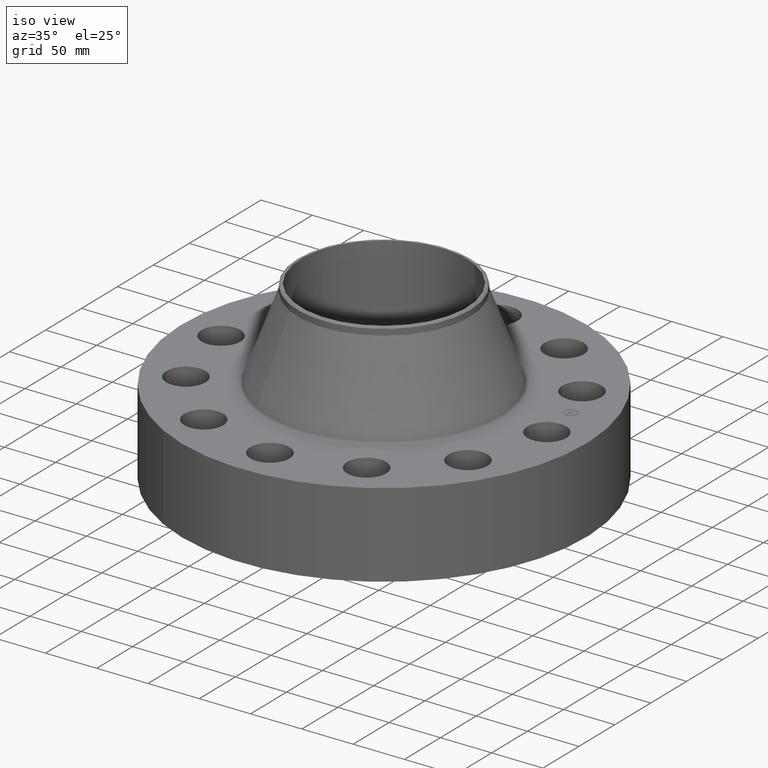
[diagram: clean part render]
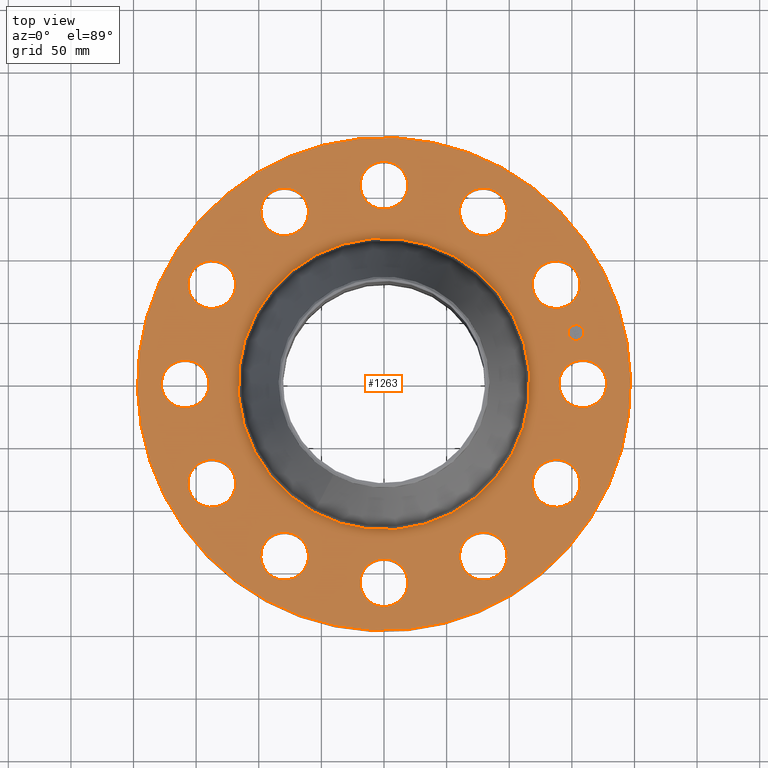
[diagram: tour spotlight — one face highlighted and labeled with its STEP entity id]
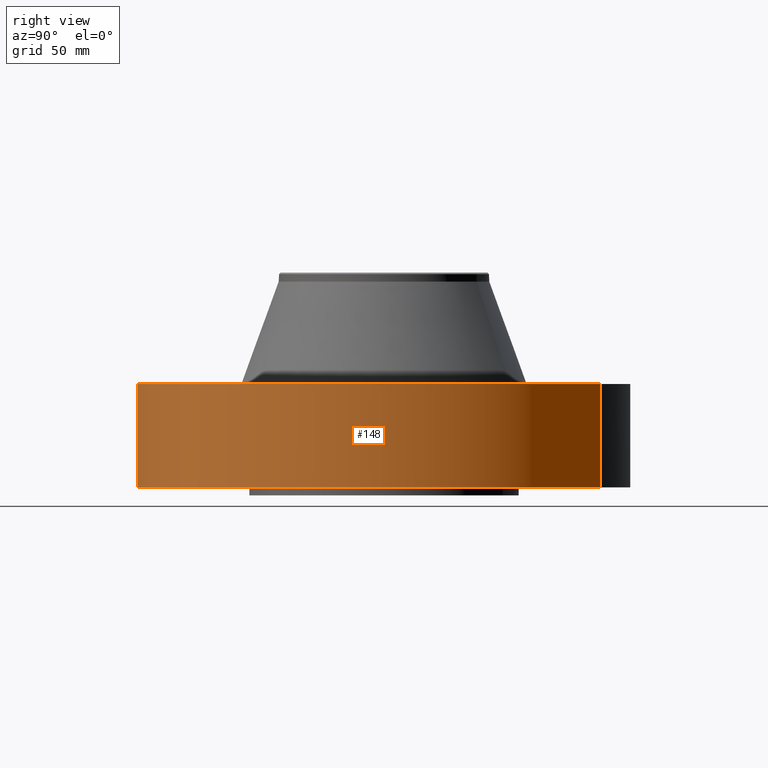
[diagram: tour spotlight — one face highlighted and labeled with its STEP entity id]
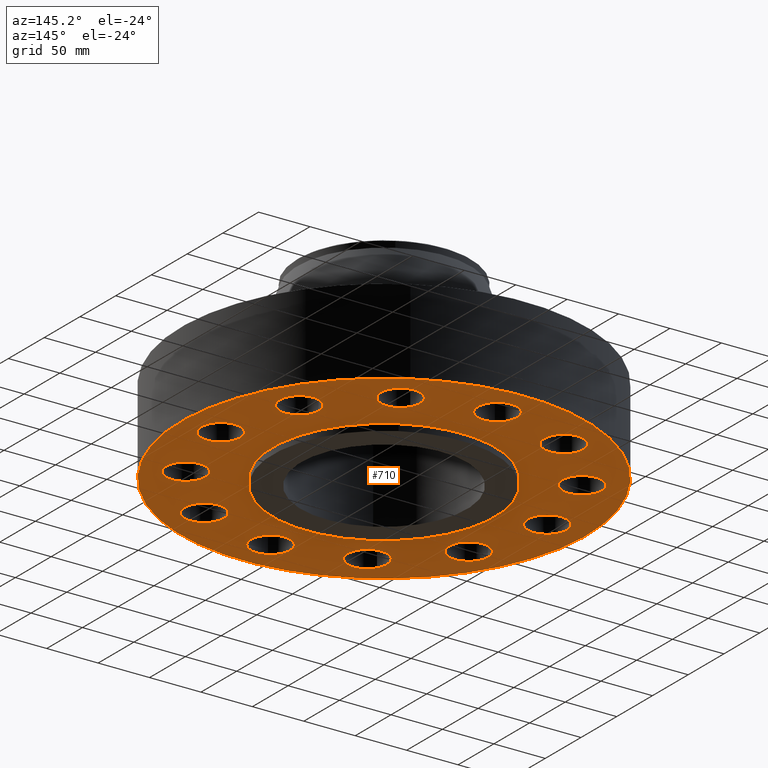
[diagram: tour spotlight — one face highlighted and labeled with its STEP entity id]
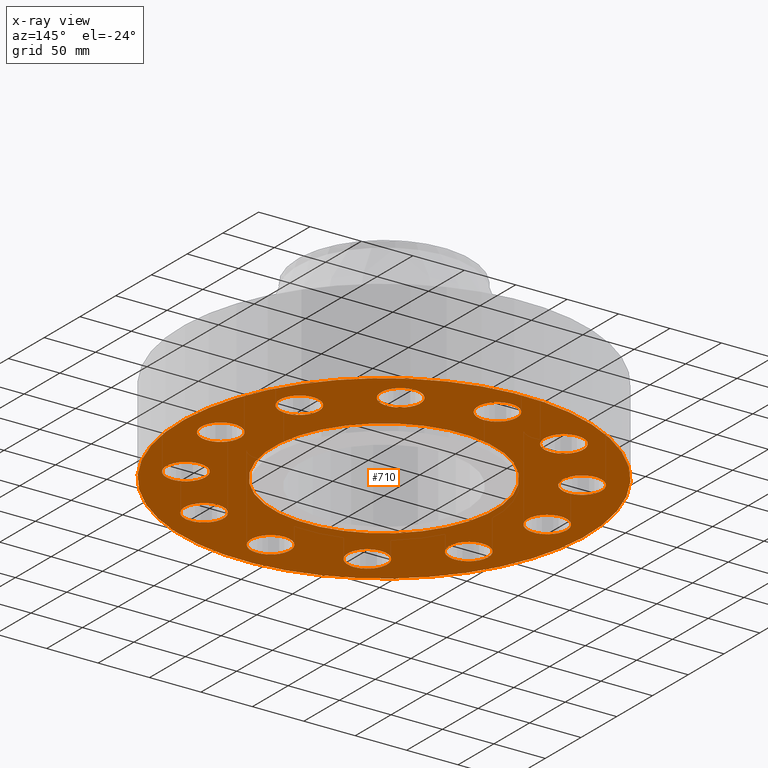
[diagram: x-ray of the same camera — body ghosted, this tour face saturated]
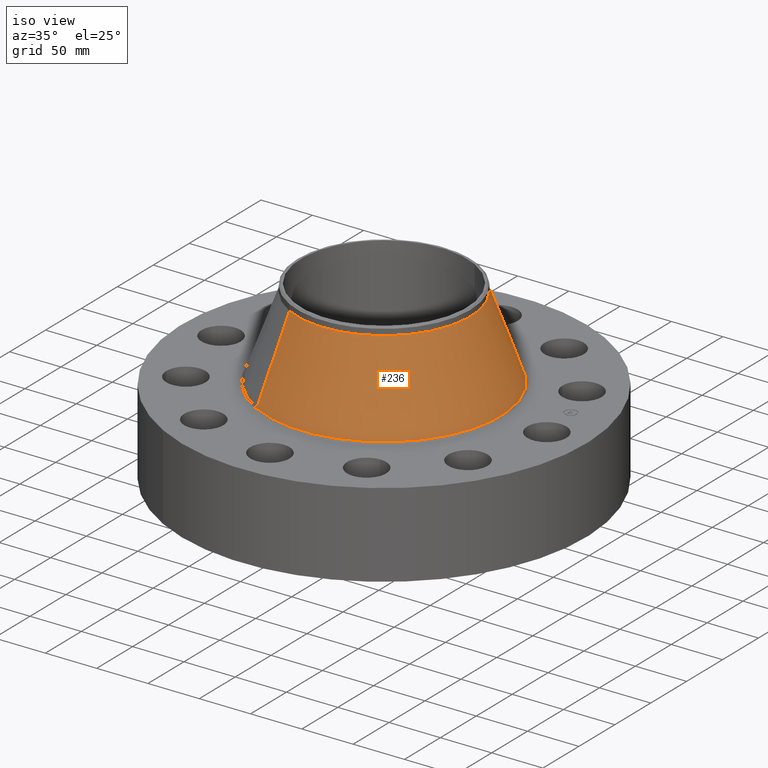
[diagram: tour spotlight — one face highlighted and labeled with its STEP entity id]
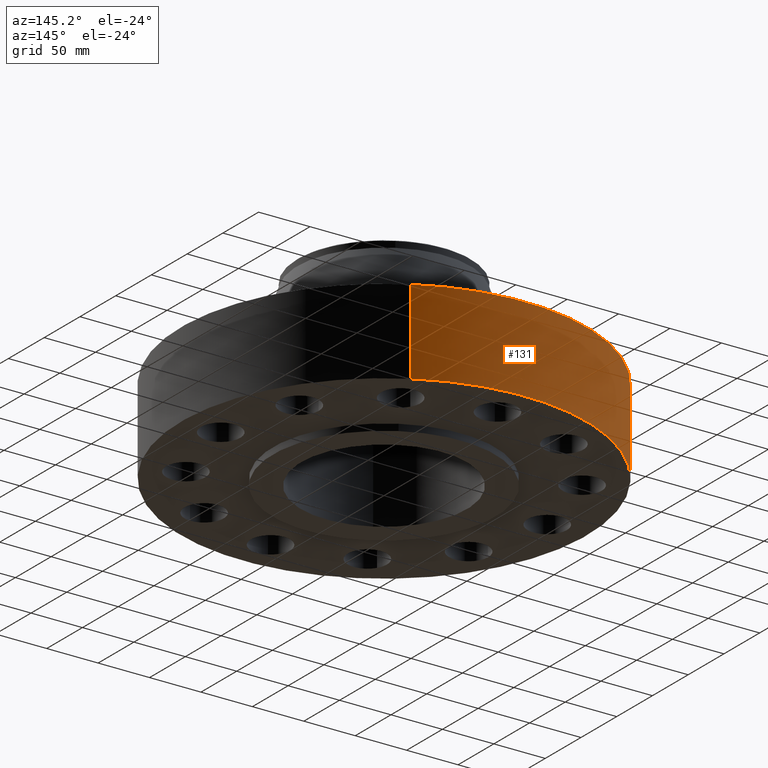
[diagram: tour spotlight — one face highlighted and labeled with its STEP entity id]
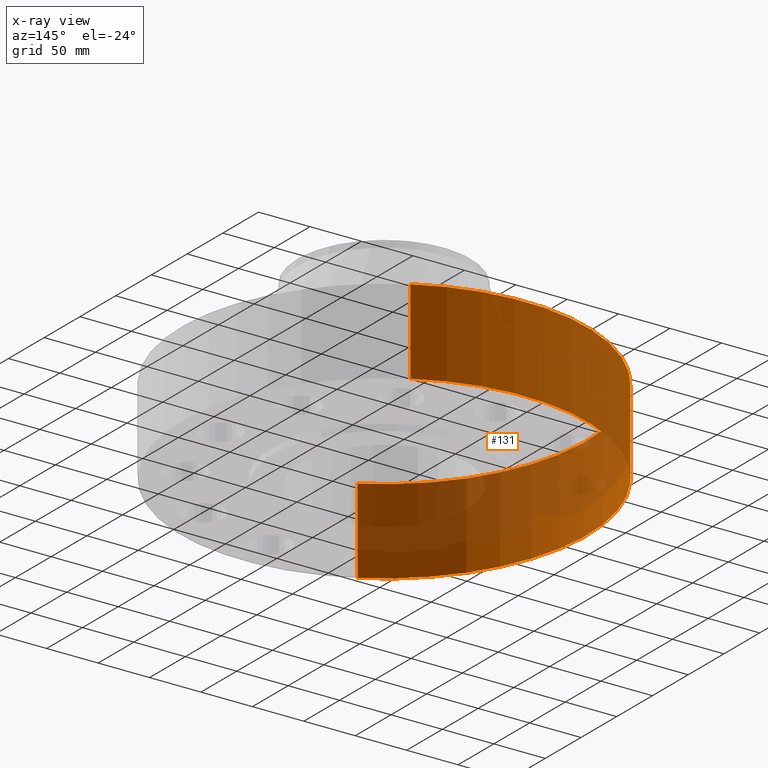
[diagram: x-ray of the same camera — body ghosted, this tour face saturated]
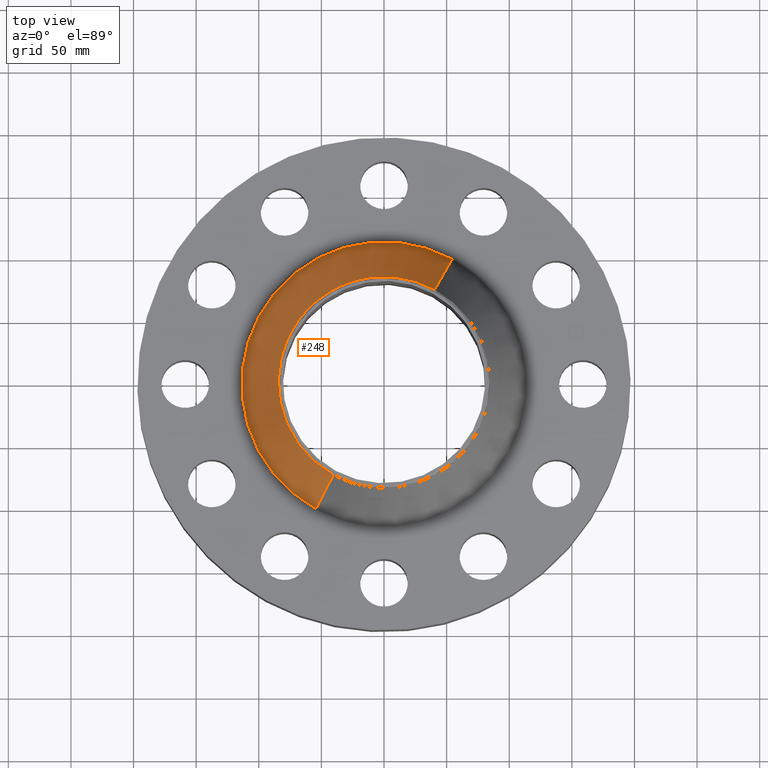
[diagram: tour spotlight — one face highlighted and labeled with its STEP entity id]
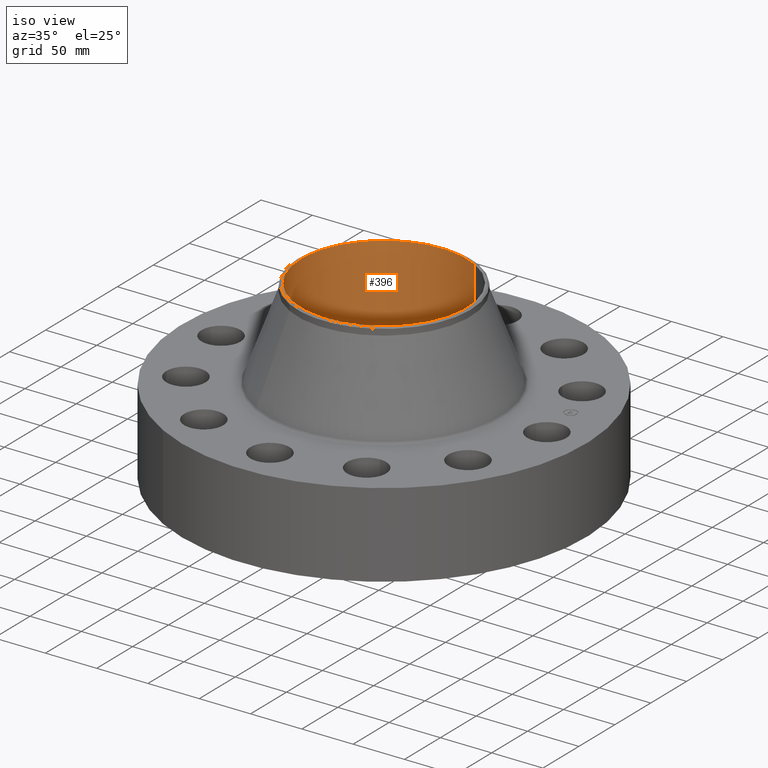
[diagram: tour spotlight — one face highlighted and labeled with its STEP entity id]
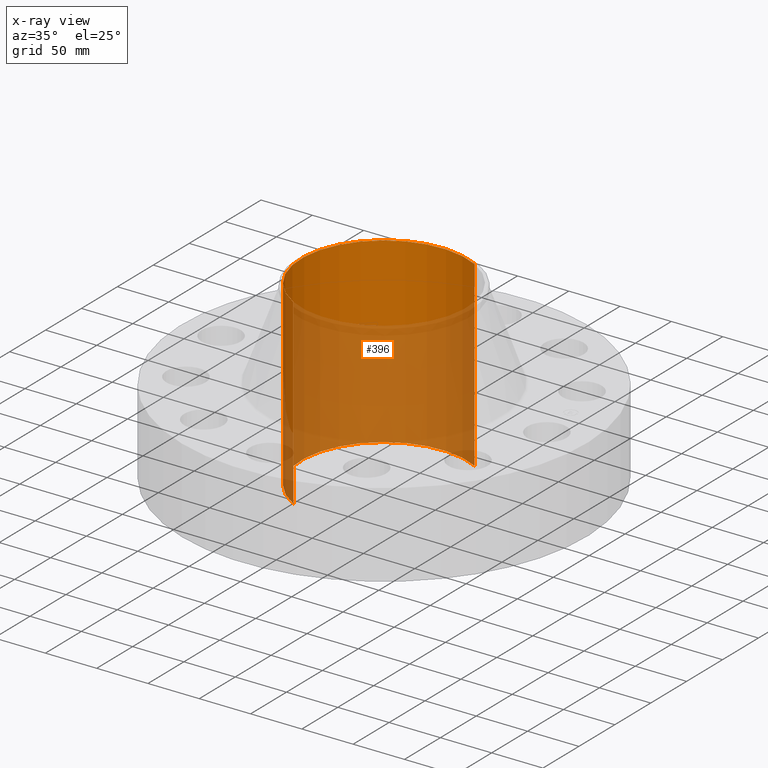
[diagram: x-ray of the same camera — body ghosted, this tour face saturated]
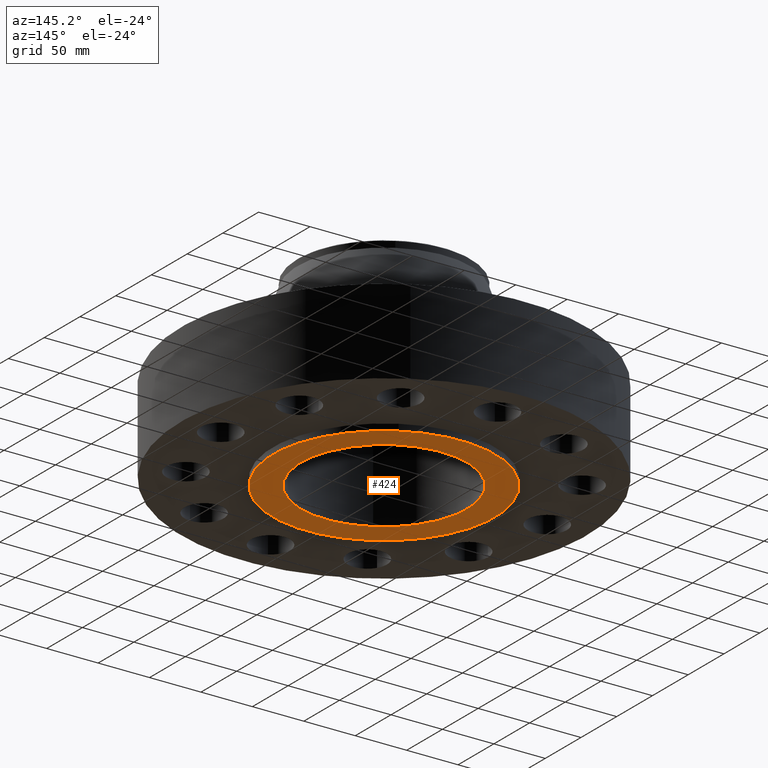
[diagram: tour spotlight — one face highlighted and labeled with its STEP entity id]
A machine part: a face-by-face anatomy tour. The part has 427 B-rep faces; the first image is the clean iso view, then the 8 largest visible faces are spotlighted one at a time (largest first), each with its STEP entity span.

Face 1 — top view, entity #1263. In plain terms, the highlighted planar face has unit normal (0, 0, -1).
Definition (entity closure, byte-faithful):
#65=AXIS2_PLACEMENT_3D('Circle Axis2P3D',#63,#64,$) ;
#82=AXIS2_PLACEMENT_3D('Circle Axis2P3D',#80,#81,$) ;
#115=AXIS2_PLACEMENT_3D('Circle Axis2P3D',#113,#114,$) ;
#139=AXIS2_PLACEMENT_3D('Circle Axis2P3D',#137,#138,$) ;
#156=AXIS2_PLACEMENT_3D('Circle Axis2P3D',#154,#155,$) ;
#191=AXIS2_PLACEMENT_3D('Circle Axis2P3D',#189,#190,$) ;
#732=AXIS2_PLACEMENT_3D('Circle Axis2P3D',#730,#731,$) ;
#744=AXIS2_PLACEMENT_3D('Circle Axis2P3D',#742,#743,$) ;
#775=AXIS2_PLACEMENT_3D('Circle Axis2P3D',#773,#774,$) ;
#787=AXIS2_PLACEMENT_3D('Circle Axis2P3D',#785,#786,$) ;
#818=AXIS2_PLACEMENT_3D('Circle Axis2P3D',#816,#817,$) ;
#830=AXIS2_PLACEMENT_3D('Circle Axis2P3D',#828,#829,$) ;
#861=AXIS2_PLACEMENT_3D('Circle Axis2P3D',#859,#860,$) ;
#873=AXIS2_PLACEMENT_3D('Circle Axis2P3D',#871,#872,$) ;
#904=AXIS2_PLACEMENT_3D('Circle Axis2P3D',#902,#903,$) ;
#916=AXIS2_PLACEMENT_3D('Circle Axis2P3D',#914,#915,$) ;
#947=AXIS2_PLACEMENT_3D('Circle Axis2P3D',#945,#946,$) ;
#959=AXIS2_PLACEMENT_3D('Circle Axis2P3D',#957,#958,$) ;
#990=AXIS2_PLACEMENT_3D('Circle Axis2P3D',#988,#989,$) ;
#1002=AXIS2_PLACEMENT_3D('Circle Axis2P3D',#1000,#1001,$) ;
#1033=AXIS2_PLACEMENT_3D('Circle Axis2P3D',#1031,#1032,$) ;
#1045=AXIS2_PLACEMENT_3D('Circle Axis2P3D',#1043,#1044,$) ;
#1076=AXIS2_PLACEMENT_3D('Circle Axis2P3D',#1074,#1075,$) ;
#1088=AXIS2_PLACEMENT_3D('Circle Axis2P3D',#1086,#1087,$) ;
#1119=AXIS2_PLACEMENT_3D('Circle Axis2P3D',#1117,#1118,$) ;
#1131=AXIS2_PLACEMENT_3D('Circle Axis2P3D',#1129,#1130,$) ;
#1162=AXIS2_PLACEMENT_3D('Circle Axis2P3D',#1160,#1161,$) ;
#1174=AXIS2_PLACEMENT_3D('Circle Axis2P3D',#1172,#1173,$) ;
#1187=AXIS2_PLACEMENT_3D('Plane Axis2P3D',#1184,#1185,#1186) ;
#1247=AXIS2_PLACEMENT_3D('Circle Axis2P3D',#1245,#1246,$) ;
#1256=AXIS2_PLACEMENT_3D('Circle Axis2P3D',#1254,#1255,$) ;
#46=CARTESIAN_POINT('Vertex',(5.5918130786,0.359569153955,3.25000000001)) ;
#60=CARTESIAN_POINT('Vertex',(6.90818692145,-0.359569153955,3.25000000001)) ;
#63=CARTESIAN_POINT('Axis2P3D Location',(6.25000000003,0.,3.25000000001)) ;
#80=CARTESIAN_POINT('Axis2P3D Location',(6.25000000003,0.,3.25000000001)) ;
#110=CARTESIAN_POINT('Vertex',(-3.7155479242,-6.80126485468,3.25000000001)) ;
#113=CARTESIAN_POINT('Axis2P3D Location',(0.,0.,3.25000000001)) ;
#117=CARTESIAN_POINT('Vertex',(3.7155479242,6.80126485468,3.25000000001)) ;
#137=CARTESIAN_POINT('Axis2P3D Location',(0.,0.,3.25000000001)) ;
#154=CARTESIAN_POINT('Axis2P3D Location',(0.,0.,3.25000000001)) ;
#158=CARTESIAN_POINT('Vertex',(2.1975436546,4.02257667767,3.25000000001)) ;
#160=CARTESIAN_POINT('Vertex',(-2.1975436546,-4.02257667767,3.25000000001)) ;
#189=CARTESIAN_POINT('Axis2P3D Location',(0.,0.,3.25000000001)) ;
#720=CARTESIAN_POINT('Vertex',(-5.02243675626,2.48451051756,3.25000000001)) ;
#727=CARTESIAN_POINT('Vertex',(-5.80288079109,3.76548948246,3.25000000001)) ;
#730=CARTESIAN_POINT('Axis2P3D Location',(-5.41265877367,3.12500000001,3.25000000001)) ;
#742=CARTESIAN_POINT('Axis2P3D Location',(-5.41265877367,3.12500000001,3.25000000001)) ;
#763=CARTESIAN_POINT('Vertex',(3.10730256104,-4.66286760231,3.25000000001)) ;
#770=CARTESIAN_POINT('Vertex',(3.14269743898,-6.16244994504,3.25000000001)) ;
#773=CARTESIAN_POINT('Axis2P3D Location',(3.12500000001,-5.41265877367,3.25000000001)) ;
#785=CARTESIAN_POINT('Axis2P3D Location',(3.12500000001,-5.41265877367,3.25000000001)) ;
#806=CARTESIAN_POINT('Vertex',(-3.10730256104,4.66286760231,3.25000000001)) ;
#813=CARTESIAN_POINT('Vertex',(-3.14269743898,6.16244994504,3.25000000001)) ;
#816=CARTESIAN_POINT('Axis2P3D Location',(-3.12500000001,5.41265877367,3.25000000001)) ;
#828=CARTESIAN_POINT('Axis2P3D Location',(-3.12500000001,5.41265877367,3.25000000001)) ;
#849=CARTESIAN_POINT('Vertex',(0.359569153955,-5.5918130786,3.25000000001)) ;
#856=CARTESIAN_POINT('Vertex',(-0.359569153955,-6.90818692145,3.25000000001)) ;
#859=CARTESIAN_POINT('Axis2P3D Location',(-7.3626281347E-016,-6.25000000003,3.25000000001)) ;
#871=CARTESIAN_POINT('Axis2P3D Location',(-7.3626281347E-016,-6.25000000003,3.25000000001)) ;
#892=CARTESIAN_POINT('Vertex',(-0.359569153955,5.5918130786,3.25000000001)) ;
#899=CARTESIAN_POINT('Vertex',(0.359569153955,6.90818692145,3.25000000001)) ;
#902=CARTESIAN_POINT('Axis2P3D Location',(-1.14810637421E-015,6.25000000003,3.25000000001)) ;
#914=CARTESIAN_POINT('Axis2P3D Location',(-1.14810637421E-015,6.25000000003,3.25000000001)) ;
#935=CARTESIAN_POINT('Vertex',(-2.48451051756,-5.02243675626,3.25000000001)) ;
#942=CARTESIAN_POINT('Vertex',(-3.76548948246,-5.80288079109,3.25000000001)) ;
#945=CARTESIAN_POINT('Axis2P3D Location',(-3.12500000001,-5.41265877367,3.25000000001)) ;
#957=CARTESIAN_POINT('Axis2P3D Location',(-3.12500000001,-5.41265877367,3.25000000001)) ;
#978=CARTESIAN_POINT('Vertex',(2.48451051756,5.02243675626,3.25000000001)) ;
#985=CARTESIAN_POINT('Vertex',(3.76548948246,5.80288079109,3.25000000001)) ;
#988=CARTESIAN_POINT('Axis2P3D Location',(3.12500000001,5.41265877367,3.25000000001)) ;
#1000=CARTESIAN_POINT('Axis2P3D Location',(3.12500000001,5.41265877367,3.25000000001)) ;
#1021=CARTESIAN_POINT('Vertex',(-4.66286760231,-3.10730256104,3.25000000001)) ;
#1028=CARTESIAN_POINT('Vertex',(-6.16244994504,-3.14269743898,3.25000000001)) ;
#1031=CARTESIAN_POINT('Axis2P3D Location',(-5.41265877367,-3.12500000001,3.25000000001)) ;
#1043=CARTESIAN_POINT('Axis2P3D Location',(-5.41265877367,-3.12500000001,3.25000000001)) ;
#1064=CARTESIAN_POINT('Vertex',(4.66286760231,3.10730256104,3.25000000001)) ;
#1071=CARTESIAN_POINT('Vertex',(6.16244994504,3.14269743898,3.25000000001)) ;
#1074=CARTESIAN_POINT('Axis2P3D Location',(5.41265877367,3.12500000001,3.25000000001)) ;
#1086=CARTESIAN_POINT('Axis2P3D Location',(5.41265877367,3.12500000001,3.25000000001)) ;
#1107=CARTESIAN_POINT('Vertex',(-5.5918130786,-0.359569153955,3.25000000001)) ;
#1114=CARTESIAN_POINT('Vertex',(-6.90818692145,0.359569153955,3.25000000001)) ;
#1117=CARTESIAN_POINT('Axis2P3D Location',(-6.25000000003,-7.6540424947E-016,3.25000000001)) ;
#1129=CARTESIAN_POINT('Axis2P3D Location',(-6.25000000003,-7.6540424947E-016,3.25000000001)) ;
#1150=CARTESIAN_POINT('Vertex',(5.02243675626,-2.48451051756,3.25000000001)) ;
#1157=CARTESIAN_POINT('Vertex',(5.80288079109,-3.76548948246,3.25000000001)) ;
#1160=CARTESIAN_POINT('Axis2P3D Location',(5.41265877367,-3.12500000001,3.25000000001)) ;
#1172=CARTESIAN_POINT('Axis2P3D Location',(5.41265877367,-3.12500000001,3.25000000001)) ;
#1184=CARTESIAN_POINT('Axis2P3D Location',(0.,7.75000000003,3.25000000001)) ;
#1245=CARTESIAN_POINT('Axis2P3D Location',(6.03703641433,1.6176190319,3.25000000001)) ;
#1249=CARTESIAN_POINT('Vertex',(5.97297870067,1.8566856739,3.25000000001)) ;
#1251=CARTESIAN_POINT('Vertex',(6.10109412799,1.37855238989,3.25000000001)) ;
#1254=CARTESIAN_POINT('Axis2P3D Location',(6.03703641433,1.6176190319,3.25000000001)) ;
#64=DIRECTION('Axis2P3D Direction',(0.,-0.,-0.0393700787402)) ;
#81=DIRECTION('Axis2P3D Direction',(0.,-0.,-0.0393700787402)) ;
#114=DIRECTION('Axis2P3D Direction',(0.,0.,-0.0393700787402)) ;
#138=DIRECTION('Axis2P3D Direction',(0.,0.,-0.0393700787402)) ;
#155=DIRECTION('Axis2P3D Direction',(0.,0.,-0.0393700787402)) ;
#190=DIRECTION('Axis2P3D Direction',(0.,0.,-0.0393700787402)) ;
#731=DIRECTION('Axis2P3D Direction',(0.,0.,-0.0393700787402)) ;
#743=DIRECTION('Axis2P3D Direction',(0.,0.,-0.0393700787402)) ;
#774=DIRECTION('Axis2P3D Direction',(0.,-0.,-0.0393700787402)) ;
#786=DIRECTION('Axis2P3D Direction',(0.,-0.,-0.0393700787402)) ;
#817=DIRECTION('Axis2P3D Direction',(0.,0.,-0.0393700787402)) ;
#829=DIRECTION('Axis2P3D Direction',(0.,0.,-0.0393700787402)) ;
#860=DIRECTION('Axis2P3D Direction',(0.,-0.,-0.0393700787402)) ;
#872=DIRECTION('Axis2P3D Direction',(0.,-0.,-0.0393700787402)) ;
#903=DIRECTION('Axis2P3D Direction',(0.,0.,-0.0393700787402)) ;
#915=DIRECTION('Axis2P3D Direction',(0.,0.,-0.0393700787402)) ;
#946=DIRECTION('Axis2P3D Direction',(-0.,0.,-0.0393700787402)) ;
#958=DIRECTION('Axis2P3D Direction',(-0.,0.,-0.0393700787402)) ;
#989=DIRECTION('Axis2P3D Direction',(0.,0.,-0.0393700787402)) ;
#1001=DIRECTION('Axis2P3D Direction',(0.,0.,-0.0393700787402)) ;
#1032=DIRECTION('Axis2P3D Direction',(-0.,0.,-0.0393700787402)) ;
#1044=DIRECTION('Axis2P3D Direction',(-0.,0.,-0.0393700787402)) ;
#1075=DIRECTION('Axis2P3D Direction',(0.,0.,-0.0393700787402)) ;
#1087=DIRECTION('Axis2P3D Direction',(0.,0.,-0.0393700787402)) ;
#1118=DIRECTION('Axis2P3D Direction',(-0.,0.,-0.0393700787402)) ;
#1130=DIRECTION('Axis2P3D Direction',(-0.,0.,-0.0393700787402)) ;
#1161=DIRECTION('Axis2P3D Direction',(0.,-0.,-0.0393700787402)) ;
#1173=DIRECTION('Axis2P3D Direction',(0.,-0.,-0.0393700787402)) ;
#1185=DIRECTION('Axis2P3D Direction',(0.,0.,-0.0393700787402)) ;
#1186=DIRECTION('Axis2P3D XDirection',(0.0393700787402,0.,0.)) ;
#1246=DIRECTION('Axis2P3D Direction',(0.,0.,-0.0393700787402)) ;
#1255=DIRECTION('Axis2P3D Direction',(0.,0.,-0.0393700787402)) ;
#1190=ORIENTED_EDGE('',*,*,#141,.F.) ;
#1191=ORIENTED_EDGE('',*,*,#119,.F.) ;
#1194=ORIENTED_EDGE('',*,*,#67,.T.) ;
#1195=ORIENTED_EDGE('',*,*,#84,.T.) ;
#1198=ORIENTED_EDGE('',*,*,#193,.T.) ;
#1199=ORIENTED_EDGE('',*,*,#162,.T.) ;
#1202=ORIENTED_EDGE('',*,*,#1176,.T.) ;
#1203=ORIENTED_EDGE('',*,*,#1164,.T.) ;
#1206=ORIENTED_EDGE('',*,*,#789,.T.) ;
#1207=ORIENTED_EDGE('',*,*,#777,.T.) ;
#1210=ORIENTED_EDGE('',*,*,#875,.T.) ;
#1211=ORIENTED_EDGE('',*,*,#863,.T.) ;
#1214=ORIENTED_EDGE('',*,*,#961,.T.) ;
#1215=ORIENTED_EDGE('',*,*,#949,.T.) ;
#1218=ORIENTED_EDGE('',*,*,#1047,.T.) ;
#1219=ORIENTED_EDGE('',*,*,#1035,.T.) ;
#1222=ORIENTED_EDGE('',*,*,#1133,.T.) ;
#1223=ORIENTED_EDGE('',*,*,#1121,.T.) ;
#1226=ORIENTED_EDGE('',*,*,#746,.T.) ;
#1227=ORIENTED_EDGE('',*,*,#734,.T.) ;
#1230=ORIENTED_EDGE('',*,*,#832,.T.) ;
#1231=ORIENTED_EDGE('',*,*,#820,.T.) ;
#1234=ORIENTED_EDGE('',*,*,#918,.T.) ;
#1235=ORIENTED_EDGE('',*,*,#906,.T.) ;
#1238=ORIENTED_EDGE('',*,*,#1004,.T.) ;
#1239=ORIENTED_EDGE('',*,*,#992,.T.) ;
#1242=ORIENTED_EDGE('',*,*,#1090,.T.) ;
#1243=ORIENTED_EDGE('',*,*,#1078,.T.) ;
#1260=ORIENTED_EDGE('',*,*,#1253,.T.) ;
#1261=ORIENTED_EDGE('',*,*,#1258,.T.) ;
#1196=FACE_BOUND('',#1193,.T.) ;
#1200=FACE_BOUND('',#1197,.T.) ;
#1204=FACE_BOUND('',#1201,.T.) ;
#1208=FACE_BOUND('',#1205,.T.) ;
#1212=FACE_BOUND('',#1209,.T.) ;
#1216=FACE_BOUND('',#1213,.T.) ;
#1220=FACE_BOUND('',#1217,.T.) ;
#1224=FACE_BOUND('',#1221,.T.) ;
#1228=FACE_BOUND('',#1225,.T.) ;
#1232=FACE_BOUND('',#1229,.T.) ;
#1236=FACE_BOUND('',#1233,.T.) ;
#1240=FACE_BOUND('',#1237,.T.) ;
#1244=FACE_BOUND('',#1241,.T.) ;
#1262=FACE_BOUND('',#1259,.T.) ;
#1263=ADVANCED_FACE('PartBody',(#1192,#1196,#1200,#1204,#1208,#1212,#1216,#1220,#1224,#1228,#1232,#1236,#1240,#1244,#1262),#1188,.F.) ;
#66=CIRCLE('generated circle',#65,0.750000000003) ;
#83=CIRCLE('generated circle',#82,0.750000000003) ;
#116=CIRCLE('generated circle',#115,7.75000000003) ;
#140=CIRCLE('generated circle',#139,7.75000000003) ;
#157=CIRCLE('generated circle',#156,4.5837016964) ;
#192=CIRCLE('generated circle',#191,4.5837016964) ;
#733=CIRCLE('generated circle',#732,0.750000000003) ;
#745=CIRCLE('generated circle',#744,0.750000000003) ;
#776=CIRCLE('generated circle',#775,0.750000000003) ;
#788=CIRCLE('generated circle',#787,0.750000000003) ;
#819=CIRCLE('generated circle',#818,0.750000000003) ;
#831=CIRCLE('generated circle',#830,0.750000000003) ;
#862=CIRCLE('generated circle',#861,0.750000000003) ;
#874=CIRCLE('generated circle',#873,0.750000000003) ;
#905=CIRCLE('generated circle',#904,0.750000000003) ;
#917=CIRCLE('generated circle',#916,0.750000000003) ;
#948=CIRCLE('generated circle',#947,0.750000000003) ;
#960=CIRCLE('generated circle',#959,0.750000000003) ;
#991=CIRCLE('generated circle',#990,0.750000000003) ;
#1003=CIRCLE('generated circle',#1002,0.750000000003) ;
#1034=CIRCLE('generated circle',#1033,0.750000000003) ;
#1046=CIRCLE('generated circle',#1045,0.750000000003) ;
#1077=CIRCLE('generated circle',#1076,0.750000000003) ;
#1089=CIRCLE('generated circle',#1088,0.750000000003) ;
#1120=CIRCLE('generated circle',#1119,0.750000000003) ;
#1132=CIRCLE('generated circle',#1131,0.750000000003) ;
#1163=CIRCLE('generated circle',#1162,0.750000000003) ;
#1175=CIRCLE('generated circle',#1174,0.750000000003) ;
#1248=CIRCLE('generated circle',#1247,0.247500000001) ;
#1257=CIRCLE('generated circle',#1256,0.247500000001) ;
#67=EDGE_CURVE('',#47,#61,#66,.T.) ;
#84=EDGE_CURVE('',#61,#47,#83,.T.) ;
#119=EDGE_CURVE('',#111,#118,#116,.T.) ;
#141=EDGE_CURVE('',#118,#111,#140,.T.) ;
#162=EDGE_CURVE('',#159,#161,#157,.T.) ;
#193=EDGE_CURVE('',#161,#159,#192,.T.) ;
#734=EDGE_CURVE('',#721,#728,#733,.T.) ;
#746=EDGE_CURVE('',#728,#721,#745,.T.) ;
#777=EDGE_CURVE('',#764,#771,#776,.T.) ;
#789=EDGE_CURVE('',#771,#764,#788,.T.) ;
#820=EDGE_CURVE('',#807,#814,#819,.T.) ;
#832=EDGE_CURVE('',#814,#807,#831,.T.) ;
#863=EDGE_CURVE('',#850,#857,#862,.T.) ;
#875=EDGE_CURVE('',#857,#850,#874,.T.) ;
#906=EDGE_CURVE('',#893,#900,#905,.T.) ;
#918=EDGE_CURVE('',#900,#893,#917,.T.) ;
#949=EDGE_CURVE('',#936,#943,#948,.T.) ;
#961=EDGE_CURVE('',#943,#936,#960,.T.) ;
#992=EDGE_CURVE('',#979,#986,#991,.T.) ;
#1004=EDGE_CURVE('',#986,#979,#1003,.T.) ;
#1035=EDGE_CURVE('',#1022,#1029,#1034,.T.) ;
#1047=EDGE_CURVE('',#1029,#1022,#1046,.T.) ;
#1078=EDGE_CURVE('',#1065,#1072,#1077,.T.) ;
#1090=EDGE_CURVE('',#1072,#1065,#1089,.T.) ;
#1121=EDGE_CURVE('',#1108,#1115,#1120,.T.) ;
#1133=EDGE_CURVE('',#1115,#1108,#1132,.T.) ;
#1164=EDGE_CURVE('',#1151,#1158,#1163,.T.) ;
#1176=EDGE_CURVE('',#1158,#1151,#1175,.T.) ;
#1253=EDGE_CURVE('',#1250,#1252,#1248,.T.) ;
#1258=EDGE_CURVE('',#1252,#1250,#1257,.T.) ;
#1189=EDGE_LOOP('',(#1190,#1191)) ;
#1193=EDGE_LOOP('',(#1194,#1195)) ;
#1197=EDGE_LOOP('',(#1198,#1199)) ;
#1201=EDGE_LOOP('',(#1202,#1203)) ;
#1205=EDGE_LOOP('',(#1206,#1207)) ;
#1209=EDGE_LOOP('',(#1210,#1211)) ;
#1213=EDGE_LOOP('',(#1214,#1215)) ;
#1217=EDGE_LOOP('',(#1218,#1219)) ;
#1221=EDGE_LOOP('',(#1222,#1223)) ;
#1225=EDGE_LOOP('',(#1226,#1227)) ;
#1229=EDGE_LOOP('',(#1230,#1231)) ;
#1233=EDGE_LOOP('',(#1234,#1235)) ;
#1237=EDGE_LOOP('',(#1238,#1239)) ;
#1241=EDGE_LOOP('',(#1242,#1243)) ;
#1259=EDGE_LOOP('',(#1260,#1261)) ;
#1192=FACE_OUTER_BOUND('',#1189,.T.) ;
#1188=PLANE('',#1187) ;
#47=VERTEX_POINT('',#46) ;
#61=VERTEX_POINT('',#60) ;
#111=VERTEX_POINT('',#110) ;
#118=VERTEX_POINT('',#117) ;
#159=VERTEX_POINT('',#158) ;
#161=VERTEX_POINT('',#160) ;
#721=VERTEX_POINT('',#720) ;
#728=VERTEX_POINT('',#727) ;
#764=VERTEX_POINT('',#763) ;
#771=VERTEX_POINT('',#770) ;
#807=VERTEX_POINT('',#806) ;
#814=VERTEX_POINT('',#813) ;
#850=VERTEX_POINT('',#849) ;
#857=VERTEX_POINT('',#856) ;
#893=VERTEX_POINT('',#892) ;
#900=VERTEX_POINT('',#899) ;
#936=VERTEX_POINT('',#935) ;
#943=VERTEX_POINT('',#942) ;
#979=VERTEX_POINT('',#978) ;
#986=VERTEX_POINT('',#985) ;
#1022=VERTEX_POINT('',#1021) ;
#1029=VERTEX_POINT('',#1028) ;
#1065=VERTEX_POINT('',#1064) ;
#1072=VERTEX_POINT('',#1071) ;
#1108=VERTEX_POINT('',#1107) ;
#1115=VERTEX_POINT('',#1114) ;
#1151=VERTEX_POINT('',#1150) ;
#1158=VERTEX_POINT('',#1157) ;
#1250=VERTEX_POINT('',#1249) ;
#1252=VERTEX_POINT('',#1251) ;

Face 2 — right view, entity #148. In plain terms, the highlighted cylindrical surface (partial cylindrical patch) has radius 196.85 mm, axis along (0, 0, -1).
Definition (entity closure, byte-faithful):
#95=AXIS2_PLACEMENT_3D('Cylinder Axis2P3D',#92,#93,#94) ;
#134=AXIS2_PLACEMENT_3D('Circle Axis2P3D',#132,#133,$) ;
#139=AXIS2_PLACEMENT_3D('Circle Axis2P3D',#137,#138,$) ;
#92=CARTESIAN_POINT('Axis2P3D Location',(0.,0.,3.25000000001)) ;
#101=CARTESIAN_POINT('Vertex',(-3.7155479242,-6.80126485468,5.59482469102E-016)) ;
#103=CARTESIAN_POINT('Vertex',(3.7155479242,6.80126485468,5.59482469102E-016)) ;
#106=CARTESIAN_POINT('Line Origine',(-3.7155479242,-6.80126485468,1.62500000001)) ;
#110=CARTESIAN_POINT('Vertex',(-3.7155479242,-6.80126485468,3.25000000001)) ;
#117=CARTESIAN_POINT('Vertex',(3.7155479242,6.80126485468,3.25000000001)) ;
#120=CARTESIAN_POINT('Line Origine',(3.7155479242,6.80126485468,1.62500000001)) ;
#132=CARTESIAN_POINT('Axis2P3D Location',(0.,0.,5.59482469102E-016)) ;
#137=CARTESIAN_POINT('Axis2P3D Location',(0.,0.,3.25000000001)) ;
#93=DIRECTION('Axis2P3D Direction',(0.,0.,-0.0393700787402)) ;
#94=DIRECTION('Axis2P3D XDirection',(0.0188750212049,0.0345504945626,0.)) ;
#107=DIRECTION('Vector Direction',(0.,0.,-0.0393700787402)) ;
#121=DIRECTION('Vector Direction',(0.,0.,-0.0393700787402)) ;
#133=DIRECTION('Axis2P3D Direction',(0.,0.,-0.0393700787402)) ;
#138=DIRECTION('Axis2P3D Direction',(0.,0.,-0.0393700787402)) ;
#108=VECTOR('Line Direction',#107,0.0393700787402) ;
#122=VECTOR('Line Direction',#121,0.0393700787402) ;
#143=ORIENTED_EDGE('',*,*,#136,.F.) ;
#144=ORIENTED_EDGE('',*,*,#124,.T.) ;
#145=ORIENTED_EDGE('',*,*,#141,.T.) ;
#146=ORIENTED_EDGE('',*,*,#112,.F.) ;
#148=ADVANCED_FACE('PartBody',(#147),#96,.T.) ;
#135=CIRCLE('generated circle',#134,7.75000000003) ;
#140=CIRCLE('generated circle',#139,7.75000000003) ;
#96=CYLINDRICAL_SURFACE('generated cylinder',#95,7.75000000003) ;
#112=EDGE_CURVE('',#102,#111,#109,.F.) ;
#124=EDGE_CURVE('',#104,#118,#123,.F.) ;
#136=EDGE_CURVE('',#104,#102,#135,.T.) ;
#141=EDGE_CURVE('',#118,#111,#140,.T.) ;
#142=EDGE_LOOP('',(#143,#144,#145,#146)) ;
#147=FACE_OUTER_BOUND('',#142,.T.) ;
#109=LINE('Line',#106,#108) ;
#123=LINE('Line',#120,#122) ;
#102=VERTEX_POINT('',#101) ;
#104=VERTEX_POINT('',#103) ;
#111=VERTEX_POINT('',#110) ;
#118=VERTEX_POINT('',#117) ;

Face 3 — auxiliary view, entity #710. An x-ray twin of the same camera follows (body ghosted, this face saturated) — the face is partly hidden behind the body. In plain terms, the highlighted planar face has unit normal (0, 0, -1).
Definition (entity closure, byte-faithful):
#51=AXIS2_PLACEMENT_3D('Circle Axis2P3D',#49,#50,$) ;
#77=AXIS2_PLACEMENT_3D('Circle Axis2P3D',#75,#76,$) ;
#99=AXIS2_PLACEMENT_3D('Circle Axis2P3D',#97,#98,$) ;
#134=AXIS2_PLACEMENT_3D('Circle Axis2P3D',#132,#133,$) ;
#466=AXIS2_PLACEMENT_3D('Circle Axis2P3D',#464,#465,$) ;
#485=AXIS2_PLACEMENT_3D('Circle Axis2P3D',#483,#484,$) ;
#498=AXIS2_PLACEMENT_3D('Plane Axis2P3D',#495,#496,#497) ;
#514=AXIS2_PLACEMENT_3D('Circle Axis2P3D',#512,#513,$) ;
#523=AXIS2_PLACEMENT_3D('Circle Axis2P3D',#521,#522,$) ;
#532=AXIS2_PLACEMENT_3D('Circle Axis2P3D',#530,#531,$) ;
#541=AXIS2_PLACEMENT_3D('Circle Axis2P3D',#539,#540,$) ;
#550=AXIS2_PLACEMENT_3D('Circle Axis2P3D',#548,#549,$) ;
#559=AXIS2_PLACEMENT_3D('Circle Axis2P3D',#557,#558,$) ;
#568=AXIS2_PLACEMENT_3D('Circle Axis2P3D',#566,#567,$) ;
#577=AXIS2_PLACEMENT_3D('Circle Axis2P3D',#575,#576,$) ;
#586=AXIS2_PLACEMENT_3D('Circle Axis2P3D',#584,#585,$) ;
#595=AXIS2_PLACEMENT_3D('Circle Axis2P3D',#593,#594,$) ;
#604=AXIS2_PLACEMENT_3D('Circle Axis2P3D',#602,#603,$) ;
#613=AXIS2_PLACEMENT_3D('Circle Axis2P3D',#611,#612,$) ;
#622=AXIS2_PLACEMENT_3D('Circle Axis2P3D',#620,#621,$) ;
#631=AXIS2_PLACEMENT_3D('Circle Axis2P3D',#629,#630,$) ;
#640=AXIS2_PLACEMENT_3D('Circle Axis2P3D',#638,#639,$) ;
#649=AXIS2_PLACEMENT_3D('Circle Axis2P3D',#647,#648,$) ;
#658=AXIS2_PLACEMENT_3D('Circle Axis2P3D',#656,#657,$) ;
#667=AXIS2_PLACEMENT_3D('Circle Axis2P3D',#665,#666,$) ;
#676=AXIS2_PLACEMENT_3D('Circle Axis2P3D',#674,#675,$) ;
#685=AXIS2_PLACEMENT_3D('Circle Axis2P3D',#683,#684,$) ;
#694=AXIS2_PLACEMENT_3D('Circle Axis2P3D',#692,#693,$) ;
#703=AXIS2_PLACEMENT_3D('Circle Axis2P3D',#701,#702,$) ;
#44=CARTESIAN_POINT('Vertex',(5.5918130786,0.359569153955,0.)) ;
#49=CARTESIAN_POINT('Axis2P3D Location',(6.25000000003,0.,0.)) ;
#53=CARTESIAN_POINT('Vertex',(6.90818692145,-0.359569153955,0.)) ;
#75=CARTESIAN_POINT('Axis2P3D Location',(6.25000000003,0.,0.)) ;
#97=CARTESIAN_POINT('Axis2P3D Location',(0.,0.,5.59482469102E-016)) ;
#101=CARTESIAN_POINT('Vertex',(-3.7155479242,-6.80126485468,5.59482469102E-016)) ;
#103=CARTESIAN_POINT('Vertex',(3.7155479242,6.80126485468,5.59482469102E-016)) ;
#132=CARTESIAN_POINT('Axis2P3D Location',(0.,0.,5.59482469102E-016)) ;
#461=CARTESIAN_POINT('Vertex',(-2.03755853908,-3.72972588805,5.59482469102E-016)) ;
#464=CARTESIAN_POINT('Axis2P3D Location',(0.,0.,5.59482469102E-016)) ;
#468=CARTESIAN_POINT('Vertex',(2.03755853908,3.72972588805,5.59482469102E-016)) ;
#483=CARTESIAN_POINT('Axis2P3D Location',(0.,0.,5.59482469102E-016)) ;
#495=CARTESIAN_POINT('Axis2P3D Location',(0.,4.25000000002,0.)) ;
#512=CARTESIAN_POINT('Axis2P3D Location',(5.41265877367,-3.12500000001,0.)) ;
#516=CARTESIAN_POINT('Vertex',(5.02243675626,-2.48451051756,0.)) ;
#518=CARTESIAN_POINT('Vertex',(5.80288079109,-3.76548948246,0.)) ;
#521=CARTESIAN_POINT('Axis2P3D Location',(5.41265877367,-3.12500000001,0.)) ;
#530=CARTESIAN_POINT('Axis2P3D Location',(3.12500000001,-5.41265877367,0.)) ;
#534=CARTESIAN_POINT('Vertex',(3.10730256104,-4.66286760231,0.)) ;
#536=CARTESIAN_POINT('Vertex',(3.14269743898,-6.16244994504,0.)) ;
#539=CARTESIAN_POINT('Axis2P3D Location',(3.12500000001,-5.41265877367,0.)) ;
#548=CARTESIAN_POINT('Axis2P3D Location',(-6.2941777774E-016,-6.25000000003,0.)) ;
#552=CARTESIAN_POINT('Vertex',(0.359569153955,-5.5918130786,0.)) ;
#554=CARTESIAN_POINT('Vertex',(-0.359569153955,-6.90818692145,0.)) ;
#557=CARTESIAN_POINT('Axis2P3D Location',(-9.09159012291E-016,-6.25000000002,0.)) ;
#566=CARTESIAN_POINT('Axis2P3D Location',(-3.12500000001,-5.41265877367,0.)) ;
#570=CARTESIAN_POINT('Vertex',(-2.48451051756,-5.02243675626,0.)) ;
#572=CARTESIAN_POINT('Vertex',(-3.76548948246,-5.80288079109,-3.35689481461E-015)) ;
#575=CARTESIAN_POINT('Axis2P3D Location',(-3.12500000001,-5.41265877367,0.)) ;
#584=CARTESIAN_POINT('Axis2P3D Location',(-5.41265877367,-3.12500000001,0.)) ;
#588=CARTESIAN_POINT('Vertex',(-4.66286760231,-3.10730256104,0.)) ;
#590=CARTESIAN_POINT('Vertex',(-6.16244994504,-3.14269743898,0.)) ;
#593=CARTESIAN_POINT('Axis2P3D Location',(-5.41265877367,-3.12500000001,0.)) ;
#602=CARTESIAN_POINT('Axis2P3D Location',(-6.25000000002,-5.59482469102E-016,0.)) ;
#606=CARTESIAN_POINT('Vertex',(-5.5918130786,-0.359569153955,0.)) ;
#608=CARTESIAN_POINT('Vertex',(-6.90818692145,0.359569153955,0.)) ;
#611=CARTESIAN_POINT('Axis2P3D Location',(-6.25000000003,-1.67844740731E-015,0.)) ;
#620=CARTESIAN_POINT('Axis2P3D Location',(-5.41265877367,3.12500000001,0.)) ;
#624=CARTESIAN_POINT('Vertex',(-5.02243675626,2.48451051756,0.)) ;
#626=CARTESIAN_POINT('Vertex',(-5.80288079109,3.76548948246,0.)) ;
#629=CARTESIAN_POINT('Axis2P3D Location',(-5.41265877367,3.12500000001,0.)) ;
#638=CARTESIAN_POINT('Axis2P3D Location',(-3.12500000001,5.41265877367,0.)) ;
#642=CARTESIAN_POINT('Vertex',(-3.10730256104,4.66286760231,0.)) ;
#644=CARTESIAN_POINT('Vertex',(-3.14269743898,6.16244994504,0.)) ;
#647=CARTESIAN_POINT('Axis2P3D Location',(-3.12500000001,5.41265877367,0.)) ;
#656=CARTESIAN_POINT('Axis2P3D Location',(-1.39870617276E-015,6.25000000003,0.)) ;
#660=CARTESIAN_POINT('Vertex',(-0.359569153955,5.5918130786,0.)) ;
#662=CARTESIAN_POINT('Vertex',(0.359569153955,6.90818692145,0.)) ;
#665=CARTESIAN_POINT('Axis2P3D Location',(-9.79094320929E-016,6.25000000003,0.)) ;
#674=CARTESIAN_POINT('Axis2P3D Location',(3.12500000001,5.41265877367,0.)) ;
#678=CARTESIAN_POINT('Vertex',(2.48451051756,5.02243675626,0.)) ;
#680=CARTESIAN_POINT('Vertex',(3.76548948246,5.80288079109,0.)) ;
#683=CARTESIAN_POINT('Axis2P3D Location',(3.12500000001,5.41265877367,0.)) ;
#692=CARTESIAN_POINT('Axis2P3D Location',(5.41265877367,3.12500000001,0.)) ;
#696=CARTESIAN_POINT('Vertex',(4.66286760231,3.10730256104,0.)) ;
#698=CARTESIAN_POINT('Vertex',(6.16244994504,3.14269743898,0.)) ;
#701=CARTESIAN_POINT('Axis2P3D Location',(5.41265877367,3.12500000001,0.)) ;
#50=DIRECTION('Axis2P3D Direction',(0.,-0.,-0.0393700787402)) ;
#76=DIRECTION('Axis2P3D Direction',(0.,-0.,-0.0393700787402)) ;
#98=DIRECTION('Axis2P3D Direction',(0.,0.,-0.0393700787402)) ;
#133=DIRECTION('Axis2P3D Direction',(0.,0.,-0.0393700787402)) ;
#465=DIRECTION('Axis2P3D Direction',(0.,0.,-0.0393700787402)) ;
#484=DIRECTION('Axis2P3D Direction',(0.,0.,-0.0393700787402)) ;
#496=DIRECTION('Axis2P3D Direction',(0.,0.,-0.0393700787402)) ;
#497=DIRECTION('Axis2P3D XDirection',(0.0393700787402,0.,0.)) ;
#513=DIRECTION('Axis2P3D Direction',(0.,0.,-0.0393700787402)) ;
#522=DIRECTION('Axis2P3D Direction',(0.,0.,-0.0393700787402)) ;
#531=DIRECTION('Axis2P3D Direction',(0.,0.,-0.0393700787402)) ;
#540=DIRECTION('Axis2P3D Direction',(0.,0.,-0.0393700787402)) ;
#549=DIRECTION('Axis2P3D Direction',(0.,0.,-0.0393700787402)) ;
#558=DIRECTION('Axis2P3D Direction',(0.,0.,-0.0393700787402)) ;
#567=DIRECTION('Axis2P3D Direction',(0.,0.,-0.0393700787402)) ;
#576=DIRECTION('Axis2P3D Direction',(0.,0.,-0.0393700787402)) ;
#585=DIRECTION('Axis2P3D Direction',(0.,0.,-0.0393700787402)) ;
#594=DIRECTION('Axis2P3D Direction',(0.,0.,-0.0393700787402)) ;
#603=DIRECTION('Axis2P3D Direction',(0.,0.,-0.0393700787402)) ;
#612=DIRECTION('Axis2P3D Direction',(0.,0.,-0.0393700787402)) ;
#621=DIRECTION('Axis2P3D Direction',(0.,0.,-0.0393700787402)) ;
#630=DIRECTION('Axis2P3D Direction',(0.,0.,-0.0393700787402)) ;
#639=DIRECTION('Axis2P3D Direction',(0.,0.,-0.0393700787402)) ;
#648=DIRECTION('Axis2P3D Direction',(0.,0.,-0.0393700787402)) ;
#657=DIRECTION('Axis2P3D Direction',(0.,0.,-0.0393700787402)) ;
#666=DIRECTION('Axis2P3D Direction',(0.,0.,-0.0393700787402)) ;
#675=DIRECTION('Axis2P3D Direction',(0.,0.,-0.0393700787402)) ;
#684=DIRECTION('Axis2P3D Direction',(0.,0.,-0.0393700787402)) ;
#693=DIRECTION('Axis2P3D Direction',(0.,0.,-0.0393700787402)) ;
#702=DIRECTION('Axis2P3D Direction',(0.,0.,-0.0393700787402)) ;
#501=ORIENTED_EDGE('',*,*,#105,.T.) ;
#502=ORIENTED_EDGE('',*,*,#136,.T.) ;
#505=ORIENTED_EDGE('',*,*,#79,.F.) ;
#506=ORIENTED_EDGE('',*,*,#55,.F.) ;
#509=ORIENTED_EDGE('',*,*,#487,.F.) ;
#510=ORIENTED_EDGE('',*,*,#470,.F.) ;
#527=ORIENTED_EDGE('',*,*,#520,.F.) ;
#528=ORIENTED_EDGE('',*,*,#525,.F.) ;
#545=ORIENTED_EDGE('',*,*,#538,.F.) ;
#546=ORIENTED_EDGE('',*,*,#543,.F.) ;
#563=ORIENTED_EDGE('',*,*,#556,.F.) ;
#564=ORIENTED_EDGE('',*,*,#561,.F.) ;
#581=ORIENTED_EDGE('',*,*,#574,.F.) ;
#582=ORIENTED_EDGE('',*,*,#579,.F.) ;
#599=ORIENTED_EDGE('',*,*,#592,.F.) ;
#600=ORIENTED_EDGE('',*,*,#597,.F.) ;
#617=ORIENTED_EDGE('',*,*,#610,.F.) ;
#618=ORIENTED_EDGE('',*,*,#615,.F.) ;
#635=ORIENTED_EDGE('',*,*,#628,.F.) ;
#636=ORIENTED_EDGE('',*,*,#633,.F.) ;
#653=ORIENTED_EDGE('',*,*,#646,.F.) ;
#654=ORIENTED_EDGE('',*,*,#651,.F.) ;
#671=ORIENTED_EDGE('',*,*,#664,.F.) ;
#672=ORIENTED_EDGE('',*,*,#669,.F.) ;
#689=ORIENTED_EDGE('',*,*,#682,.F.) ;
#690=ORIENTED_EDGE('',*,*,#687,.F.) ;
#707=ORIENTED_EDGE('',*,*,#700,.F.) ;
#708=ORIENTED_EDGE('',*,*,#705,.F.) ;
#507=FACE_BOUND('',#504,.T.) ;
#511=FACE_BOUND('',#508,.T.) ;
#529=FACE_BOUND('',#526,.T.) ;
#547=FACE_BOUND('',#544,.T.) ;
#565=FACE_BOUND('',#562,.T.) ;
#583=FACE_BOUND('',#580,.T.) ;
#601=FACE_BOUND('',#598,.T.) ;
#619=FACE_BOUND('',#616,.T.) ;
#637=FACE_BOUND('',#634,.T.) ;
#655=FACE_BOUND('',#652,.T.) ;
#673=FACE_BOUND('',#670,.T.) ;
#691=FACE_BOUND('',#688,.T.) ;
#709=FACE_BOUND('',#706,.T.) ;
#710=ADVANCED_FACE('PartBody',(#503,#507,#511,#529,#547,#565,#583,#601,#619,#637,#655,#673,#691,#709),#499,.T.) ;
#52=CIRCLE('generated circle',#51,0.750000000003) ;
#78=CIRCLE('generated circle',#77,0.750000000003) ;
#100=CIRCLE('generated circle',#99,7.75000000003) ;
#135=CIRCLE('generated circle',#134,7.75000000003) ;
#467=CIRCLE('generated circle',#466,4.25000000002) ;
#486=CIRCLE('generated circle',#485,4.25000000002) ;
#515=CIRCLE('generated circle',#514,0.750000000003) ;
#524=CIRCLE('generated circle',#523,0.750000000003) ;
#533=CIRCLE('generated circle',#532,0.750000000003) ;
#542=CIRCLE('generated circle',#541,0.750000000003) ;
#551=CIRCLE('generated circle',#550,0.750000000003) ;
#560=CIRCLE('generated circle',#559,0.750000000003) ;
#569=CIRCLE('generated circle',#568,0.750000000003) ;
#578=CIRCLE('generated circle',#577,0.750000000003) ;
#587=CIRCLE('generated circle',#586,0.750000000003) ;
#596=CIRCLE('generated circle',#595,0.750000000003) ;
#605=CIRCLE('generated circle',#604,0.750000000003) ;
#614=CIRCLE('generated circle',#613,0.750000000003) ;
#623=CIRCLE('generated circle',#622,0.750000000003) ;
#632=CIRCLE('generated circle',#631,0.750000000003) ;
#641=CIRCLE('generated circle',#640,0.750000000003) ;
#650=CIRCLE('generated circle',#649,0.750000000003) ;
#659=CIRCLE('generated circle',#658,0.750000000003) ;
#668=CIRCLE('generated circle',#667,0.750000000003) ;
#677=CIRCLE('generated circle',#676,0.750000000003) ;
#686=CIRCLE('generated circle',#685,0.750000000003) ;
#695=CIRCLE('generated circle',#694,0.750000000003) ;
#704=CIRCLE('generated circle',#703,0.750000000003) ;
#55=EDGE_CURVE('',#45,#54,#52,.T.) ;
#79=EDGE_CURVE('',#54,#45,#78,.T.) ;
#105=EDGE_CURVE('',#102,#104,#100,.T.) ;
#136=EDGE_CURVE('',#104,#102,#135,.T.) ;
#470=EDGE_CURVE('',#462,#469,#467,.T.) ;
#487=EDGE_CURVE('',#469,#462,#486,.T.) ;
#520=EDGE_CURVE('',#517,#519,#515,.T.) ;
#525=EDGE_CURVE('',#519,#517,#524,.T.) ;
#538=EDGE_CURVE('',#535,#537,#533,.T.) ;
#543=EDGE_CURVE('',#537,#535,#542,.T.) ;
#556=EDGE_CURVE('',#553,#555,#551,.T.) ;
#561=EDGE_CURVE('',#555,#553,#560,.T.) ;
#574=EDGE_CURVE('',#571,#573,#569,.T.) ;
#579=EDGE_CURVE('',#573,#571,#578,.T.) ;
#592=EDGE_CURVE('',#589,#591,#587,.T.) ;
#597=EDGE_CURVE('',#591,#589,#596,.T.) ;
#610=EDGE_CURVE('',#607,#609,#605,.T.) ;
#615=EDGE_CURVE('',#609,#607,#614,.T.) ;
#628=EDGE_CURVE('',#625,#627,#623,.T.) ;
#633=EDGE_CURVE('',#627,#625,#632,.T.) ;
#646=EDGE_CURVE('',#643,#645,#641,.T.) ;
#651=EDGE_CURVE('',#645,#643,#650,.T.) ;
#664=EDGE_CURVE('',#661,#663,#659,.T.) ;
#669=EDGE_CURVE('',#663,#661,#668,.T.) ;
#682=EDGE_CURVE('',#679,#681,#677,.T.) ;
#687=EDGE_CURVE('',#681,#679,#686,.T.) ;
#700=EDGE_CURVE('',#697,#699,#695,.T.) ;
#705=EDGE_CURVE('',#699,#697,#704,.T.) ;
#500=EDGE_LOOP('',(#501,#502)) ;
#504=EDGE_LOOP('',(#505,#506)) ;
#508=EDGE_LOOP('',(#509,#510)) ;
#526=EDGE_LOOP('',(#527,#528)) ;
#544=EDGE_LOOP('',(#545,#546)) ;
#562=EDGE_LOOP('',(#563,#564)) ;
#580=EDGE_LOOP('',(#581,#582)) ;
#598=EDGE_LOOP('',(#599,#600)) ;
#616=EDGE_LOOP('',(#617,#618)) ;
#634=EDGE_LOOP('',(#635,#636)) ;
#652=EDGE_LOOP('',(#653,#654)) ;
#670=EDGE_LOOP('',(#671,#672)) ;
#688=EDGE_LOOP('',(#689,#690)) ;
#706=EDGE_LOOP('',(#707,#708)) ;
#503=FACE_OUTER_BOUND('',#500,.T.) ;
#499=PLANE('',#498) ;
#45=VERTEX_POINT('',#44) ;
#54=VERTEX_POINT('',#53) ;
#102=VERTEX_POINT('',#101) ;
#104=VERTEX_POINT('',#103) ;
#462=VERTEX_POINT('',#461) ;
#469=VERTEX_POINT('',#468) ;
#517=VERTEX_POINT('',#516) ;
#519=VERTEX_POINT('',#518) ;
#535=VERTEX_POINT('',#534) ;
#537=VERTEX_POINT('',#536) ;
#553=VERTEX_POINT('',#552) ;
#555=VERTEX_POINT('',#554) ;
#571=VERTEX_POINT('',#570) ;
#573=VERTEX_POINT('',#572) ;
#589=VERTEX_POINT('',#588) ;
#591=VERTEX_POINT('',#590) ;
#607=VERTEX_POINT('',#606) ;
#609=VERTEX_POINT('',#608) ;
#625=VERTEX_POINT('',#624) ;
#627=VERTEX_POINT('',#626) ;
#643=VERTEX_POINT('',#642) ;
#645=VERTEX_POINT('',#644) ;
#661=VERTEX_POINT('',#660) ;
#663=VERTEX_POINT('',#662) ;
#679=VERTEX_POINT('',#678) ;
#681=VERTEX_POINT('',#680) ;
#697=VERTEX_POINT('',#696) ;
#699=VERTEX_POINT('',#698) ;

Face 4 — iso view, entity #236. In plain terms, the highlighted conical surface has half-angle 20.207 deg.
Definition (entity closure, byte-faithful):
#172=AXIS2_PLACEMENT_3D('Circle Axis2P3D',#170,#171,$) ;
#209=AXIS2_PLACEMENT_3D('Cone Axis2P3D',#206,#207,#208) ;
#220=AXIS2_PLACEMENT_3D('Circle Axis2P3D',#218,#219,$) ;
#167=CARTESIAN_POINT('Vertex',(2.14355370533,3.92374873844,3.32854974302)) ;
#170=CARTESIAN_POINT('Axis2P3D Location',(0.,0.,3.32854974302)) ;
#174=CARTESIAN_POINT('Vertex',(-2.14355370533,-3.92374873844,3.32854974302)) ;
#206=CARTESIAN_POINT('Axis2P3D Location',(0.,0.,6.4694588416)) ;
#211=CARTESIAN_POINT('Line Origine',(1.8664246829,3.41646746556,4.89900429231)) ;
#215=CARTESIAN_POINT('Vertex',(1.58929566048,2.90918619268,6.4694588416)) ;
#218=CARTESIAN_POINT('Axis2P3D Location',(0.,0.,6.4694588416)) ;
#222=CARTESIAN_POINT('Vertex',(-1.58929566048,-2.90918619268,6.4694588416)) ;
#225=CARTESIAN_POINT('Line Origine',(-1.8664246829,-3.41646746556,4.89900429231)) ;
#171=DIRECTION('Axis2P3D Direction',(0.,0.,-0.0393700787402)) ;
#207=DIRECTION('Axis2P3D Direction',(0.,0.,-0.0393700787402)) ;
#208=DIRECTION('Axis2P3D XDirection',(-0.0188750212049,-0.0345504945626,0.)) ;
#212=DIRECTION('Vector Direction',(0.00651978733149,0.0119343906585,-0.0369467967863)) ;
#219=DIRECTION('Axis2P3D Direction',(0.,0.,-0.0393700787402)) ;
#226=DIRECTION('Vector Direction',(-0.00651978733149,-0.0119343906585,-0.0369467967863)) ;
#213=VECTOR('Line Direction',#212,0.0393700787402) ;
#227=VECTOR('Line Direction',#226,0.0393700787402) ;
#231=ORIENTED_EDGE('',*,*,#176,.F.) ;
#232=ORIENTED_EDGE('',*,*,#217,.T.) ;
#233=ORIENTED_EDGE('',*,*,#224,.T.) ;
#234=ORIENTED_EDGE('',*,*,#229,.F.) ;
#236=ADVANCED_FACE('PartBody',(#235),#210,.T.) ;
#173=CIRCLE('generated circle',#172,4.4710878598) ;
#221=CIRCLE('generated circle',#220,3.31500000001) ;
#210=CONICAL_SURFACE('Cone',#209,3.31500000001,0.352685025753) ;
#176=EDGE_CURVE('',#168,#175,#173,.T.) ;
#217=EDGE_CURVE('',#168,#216,#214,.F.) ;
#224=EDGE_CURVE('',#216,#223,#221,.T.) ;
#229=EDGE_CURVE('',#175,#223,#228,.F.) ;
#230=EDGE_LOOP('',(#231,#232,#233,#234)) ;
#235=FACE_OUTER_BOUND('',#230,.T.) ;
#214=LINE('Line',#211,#213) ;
#228=LINE('Line',#225,#227) ;
#168=VERTEX_POINT('',#167) ;
#175=VERTEX_POINT('',#174) ;
#216=VERTEX_POINT('',#215) ;
#223=VERTEX_POINT('',#222) ;

Face 5 — auxiliary view, entity #131. An x-ray twin of the same camera follows (body ghosted, this face saturated) — the face is partly hidden behind the body. In plain terms, the highlighted cylindrical surface (partial cylindrical patch) has radius 196.85 mm, axis along (0, 0, -1).
Definition (entity closure, byte-faithful):
#95=AXIS2_PLACEMENT_3D('Cylinder Axis2P3D',#92,#93,#94) ;
#99=AXIS2_PLACEMENT_3D('Circle Axis2P3D',#97,#98,$) ;
#115=AXIS2_PLACEMENT_3D('Circle Axis2P3D',#113,#114,$) ;
#92=CARTESIAN_POINT('Axis2P3D Location',(0.,0.,3.25000000001)) ;
#97=CARTESIAN_POINT('Axis2P3D Location',(0.,0.,5.59482469102E-016)) ;
#101=CARTESIAN_POINT('Vertex',(-3.7155479242,-6.80126485468,5.59482469102E-016)) ;
#103=CARTESIAN_POINT('Vertex',(3.7155479242,6.80126485468,5.59482469102E-016)) ;
#106=CARTESIAN_POINT('Line Origine',(-3.7155479242,-6.80126485468,1.62500000001)) ;
#110=CARTESIAN_POINT('Vertex',(-3.7155479242,-6.80126485468,3.25000000001)) ;
#113=CARTESIAN_POINT('Axis2P3D Location',(0.,0.,3.25000000001)) ;
#117=CARTESIAN_POINT('Vertex',(3.7155479242,6.80126485468,3.25000000001)) ;
#120=CARTESIAN_POINT('Line Origine',(3.7155479242,6.80126485468,1.62500000001)) ;
#93=DIRECTION('Axis2P3D Direction',(0.,0.,-0.0393700787402)) ;
#94=DIRECTION('Axis2P3D XDirection',(0.0188750212049,0.0345504945626,0.)) ;
#98=DIRECTION('Axis2P3D Direction',(0.,0.,-0.0393700787402)) ;
#107=DIRECTION('Vector Direction',(0.,0.,-0.0393700787402)) ;
#114=DIRECTION('Axis2P3D Direction',(0.,0.,-0.0393700787402)) ;
#121=DIRECTION('Vector Direction',(0.,0.,-0.0393700787402)) ;
#108=VECTOR('Line Direction',#107,0.0393700787402) ;
#122=VECTOR('Line Direction',#121,0.0393700787402) ;
#126=ORIENTED_EDGE('',*,*,#105,.F.) ;
#127=ORIENTED_EDGE('',*,*,#112,.T.) ;
#128=ORIENTED_EDGE('',*,*,#119,.T.) ;
#129=ORIENTED_EDGE('',*,*,#124,.F.) ;
#131=ADVANCED_FACE('PartBody',(#130),#96,.T.) ;
#100=CIRCLE('generated circle',#99,7.75000000003) ;
#116=CIRCLE('generated circle',#115,7.75000000003) ;
#96=CYLINDRICAL_SURFACE('generated cylinder',#95,7.75000000003) ;
#105=EDGE_CURVE('',#102,#104,#100,.T.) ;
#112=EDGE_CURVE('',#102,#111,#109,.F.) ;
#119=EDGE_CURVE('',#111,#118,#116,.T.) ;
#124=EDGE_CURVE('',#104,#118,#123,.F.) ;
#125=EDGE_LOOP('',(#126,#127,#128,#129)) ;
#130=FACE_OUTER_BOUND('',#125,.T.) ;
#109=LINE('Line',#106,#108) ;
#123=LINE('Line',#120,#122) ;
#102=VERTEX_POINT('',#101) ;
#104=VERTEX_POINT('',#103) ;
#111=VERTEX_POINT('',#110) ;
#118=VERTEX_POINT('',#117) ;

Face 6 — top view, entity #248. In plain terms, the highlighted conical surface has half-angle 20.207 deg.
Definition (entity closure, byte-faithful):
#196=AXIS2_PLACEMENT_3D('Circle Axis2P3D',#194,#195,$) ;
#209=AXIS2_PLACEMENT_3D('Cone Axis2P3D',#206,#207,#208) ;
#239=AXIS2_PLACEMENT_3D('Circle Axis2P3D',#237,#238,$) ;
#167=CARTESIAN_POINT('Vertex',(2.14355370533,3.92374873844,3.32854974302)) ;
#174=CARTESIAN_POINT('Vertex',(-2.14355370533,-3.92374873844,3.32854974302)) ;
#194=CARTESIAN_POINT('Axis2P3D Location',(0.,0.,3.32854974302)) ;
#206=CARTESIAN_POINT('Axis2P3D Location',(0.,0.,6.4694588416)) ;
#211=CARTESIAN_POINT('Line Origine',(1.8664246829,3.41646746556,4.89900429231)) ;
#215=CARTESIAN_POINT('Vertex',(1.58929566048,2.90918619268,6.4694588416)) ;
#222=CARTESIAN_POINT('Vertex',(-1.58929566048,-2.90918619268,6.4694588416)) ;
#225=CARTESIAN_POINT('Line Origine',(-1.8664246829,-3.41646746556,4.89900429231)) ;
#237=CARTESIAN_POINT('Axis2P3D Location',(0.,0.,6.4694588416)) ;
#195=DIRECTION('Axis2P3D Direction',(0.,0.,-0.0393700787402)) ;
#207=DIRECTION('Axis2P3D Direction',(0.,0.,-0.0393700787402)) ;
#208=DIRECTION('Axis2P3D XDirection',(-0.0188750212049,-0.0345504945626,0.)) ;
#212=DIRECTION('Vector Direction',(0.00651978733149,0.0119343906585,-0.0369467967863)) ;
#226=DIRECTION('Vector Direction',(-0.00651978733149,-0.0119343906585,-0.0369467967863)) ;
#238=DIRECTION('Axis2P3D Direction',(0.,0.,-0.0393700787402)) ;
#213=VECTOR('Line Direction',#212,0.0393700787402) ;
#227=VECTOR('Line Direction',#226,0.0393700787402) ;
#243=ORIENTED_EDGE('',*,*,#198,.F.) ;
#244=ORIENTED_EDGE('',*,*,#229,.T.) ;
#245=ORIENTED_EDGE('',*,*,#241,.T.) ;
#246=ORIENTED_EDGE('',*,*,#217,.F.) ;
#248=ADVANCED_FACE('PartBody',(#247),#210,.T.) ;
#197=CIRCLE('generated circle',#196,4.4710878598) ;
#240=CIRCLE('generated circle',#239,3.31500000001) ;
#210=CONICAL_SURFACE('Cone',#209,3.31500000001,0.352685025753) ;
#198=EDGE_CURVE('',#175,#168,#197,.T.) ;
#217=EDGE_CURVE('',#168,#216,#214,.F.) ;
#229=EDGE_CURVE('',#175,#223,#228,.F.) ;
#241=EDGE_CURVE('',#223,#216,#240,.T.) ;
#242=EDGE_LOOP('',(#243,#244,#245,#246)) ;
#247=FACE_OUTER_BOUND('',#242,.T.) ;
#214=LINE('Line',#211,#213) ;
#228=LINE('Line',#225,#227) ;
#168=VERTEX_POINT('',#167) ;
#175=VERTEX_POINT('',#174) ;
#216=VERTEX_POINT('',#215) ;
#223=VERTEX_POINT('',#222) ;

Face 7 — iso view, entity #396. An x-ray twin of the same camera follows (body ghosted, this face saturated) — the face is partly hidden behind the body. In plain terms, the highlighted cylindrical surface (partial cylindrical patch) has radius 80.7339 mm, axis along (0, 0, -1).
Definition (entity closure, byte-faithful):
#343=AXIS2_PLACEMENT_3D('Cylinder Axis2P3D',#340,#341,#342) ;
#382=AXIS2_PLACEMENT_3D('Circle Axis2P3D',#380,#381,$) ;
#387=AXIS2_PLACEMENT_3D('Circle Axis2P3D',#385,#386,$) ;
#340=CARTESIAN_POINT('Axis2P3D Location',(0.,0.,3.25000000001)) ;
#349=CARTESIAN_POINT('Vertex',(1.52385407446,2.78939617298,6.75000000003)) ;
#351=CARTESIAN_POINT('Vertex',(-1.52385407446,-2.78939617298,6.75000000003)) ;
#354=CARTESIAN_POINT('Line Origine',(1.52385407446,2.78939617298,3.25000000001)) ;
#358=CARTESIAN_POINT('Vertex',(1.52385407446,2.78939617298,-0.250000000001)) ;
#365=CARTESIAN_POINT('Vertex',(-1.52385407446,-2.78939617298,-0.250000000001)) ;
#368=CARTESIAN_POINT('Line Origine',(-1.52385407446,-2.78939617298,3.25000000001)) ;
#380=CARTESIAN_POINT('Axis2P3D Location',(0.,0.,6.75000000003)) ;
#385=CARTESIAN_POINT('Axis2P3D Location',(0.,0.,-0.250000000001)) ;
#341=DIRECTION('Axis2P3D Direction',(0.,0.,-0.0393700787402)) ;
#342=DIRECTION('Axis2P3D XDirection',(-0.0188750212049,-0.0345504945626,0.)) ;
#355=DIRECTION('Vector Direction',(0.,0.,-0.0393700787402)) ;
#369=DIRECTION('Vector Direction',(0.,0.,-0.0393700787402)) ;
#381=DIRECTION('Axis2P3D Direction',(0.,0.,-0.0393700787402)) ;
#386=DIRECTION('Axis2P3D Direction',(0.,0.,-0.0393700787402)) ;
#356=VECTOR('Line Direction',#355,0.0393700787402) ;
#370=VECTOR('Line Direction',#369,0.0393700787402) ;
#391=ORIENTED_EDGE('',*,*,#384,.F.) ;
#392=ORIENTED_EDGE('',*,*,#372,.T.) ;
#393=ORIENTED_EDGE('',*,*,#389,.T.) ;
#394=ORIENTED_EDGE('',*,*,#360,.F.) ;
#396=ADVANCED_FACE('PartBody',(#395),#344,.F.) ;
#383=CIRCLE('generated circle',#382,3.17850000001) ;
#388=CIRCLE('generated circle',#387,3.17850000001) ;
#344=CYLINDRICAL_SURFACE('generated cylinder',#343,3.17850000001) ;
#360=EDGE_CURVE('',#350,#359,#357,.T.) ;
#372=EDGE_CURVE('',#352,#366,#371,.T.) ;
#384=EDGE_CURVE('',#352,#350,#383,.T.) ;
#389=EDGE_CURVE('',#366,#359,#388,.T.) ;
#390=EDGE_LOOP('',(#391,#392,#393,#394)) ;
#395=FACE_OUTER_BOUND('',#390,.T.) ;
#357=LINE('Line',#354,#356) ;
#371=LINE('Line',#368,#370) ;
#350=VERTEX_POINT('',#349) ;
#352=VERTEX_POINT('',#351) ;
#359=VERTEX_POINT('',#358) ;
#366=VERTEX_POINT('',#365) ;

Face 8 — auxiliary view, entity #424. In plain terms, the highlighted planar face has unit normal (0, 0, -1).
Definition (entity closure, byte-faithful):
#363=AXIS2_PLACEMENT_3D('Circle Axis2P3D',#361,#362,$) ;
#387=AXIS2_PLACEMENT_3D('Circle Axis2P3D',#385,#386,$) ;
#400=AXIS2_PLACEMENT_3D('Plane Axis2P3D',#397,#398,#399) ;
#404=AXIS2_PLACEMENT_3D('Circle Axis2P3D',#402,#403,$) ;
#413=AXIS2_PLACEMENT_3D('Circle Axis2P3D',#411,#412,$) ;
#358=CARTESIAN_POINT('Vertex',(1.52385407446,2.78939617298,-0.250000000001)) ;
#361=CARTESIAN_POINT('Axis2P3D Location',(0.,0.,-0.250000000001)) ;
#365=CARTESIAN_POINT('Vertex',(-1.52385407446,-2.78939617298,-0.250000000001)) ;
#385=CARTESIAN_POINT('Axis2P3D Location',(0.,0.,-0.250000000001)) ;
#397=CARTESIAN_POINT('Axis2P3D Location',(0.,3.17850000001,-0.250000000001)) ;
#402=CARTESIAN_POINT('Axis2P3D Location',(0.,0.,-0.250000000001)) ;
#406=CARTESIAN_POINT('Vertex',(-2.03755853908,-3.72972588805,-0.250000000001)) ;
#408=CARTESIAN_POINT('Vertex',(2.03755853908,3.72972588805,-0.250000000001)) ;
#411=CARTESIAN_POINT('Axis2P3D Location',(0.,0.,-0.250000000001)) ;
#362=DIRECTION('Axis2P3D Direction',(0.,0.,-0.0393700787402)) ;
#386=DIRECTION('Axis2P3D Direction',(0.,0.,-0.0393700787402)) ;
#398=DIRECTION('Axis2P3D Direction',(0.,0.,-0.0393700787402)) ;
#399=DIRECTION('Axis2P3D XDirection',(0.0393700787402,0.,0.)) ;
#403=DIRECTION('Axis2P3D Direction',(0.,0.,-0.0393700787402)) ;
#412=DIRECTION('Axis2P3D Direction',(0.,0.,-0.0393700787402)) ;
#417=ORIENTED_EDGE('',*,*,#410,.T.) ;
#418=ORIENTED_EDGE('',*,*,#415,.T.) ;
#421=ORIENTED_EDGE('',*,*,#367,.F.) ;
#422=ORIENTED_EDGE('',*,*,#389,.F.) ;
#423=FACE_BOUND('',#420,.T.) ;
#424=ADVANCED_FACE('PartBody',(#419,#423),#401,.T.) ;
#364=CIRCLE('generated circle',#363,3.17850000001) ;
#388=CIRCLE('generated circle',#387,3.17850000001) ;
#405=CIRCLE('generated circle',#404,4.25000000002) ;
#414=CIRCLE('generated circle',#413,4.25000000002) ;
#367=EDGE_CURVE('',#359,#366,#364,.T.) ;
#389=EDGE_CURVE('',#366,#359,#388,.T.) ;
#410=EDGE_CURVE('',#407,#409,#405,.T.) ;
#415=EDGE_CURVE('',#409,#407,#414,.T.) ;
#416=EDGE_LOOP('',(#417,#418)) ;
#420=EDGE_LOOP('',(#421,#422)) ;
#419=FACE_OUTER_BOUND('',#416,.T.) ;
#401=PLANE('',#400) ;
#359=VERTEX_POINT('',#358) ;
#366=VERTEX_POINT('',#365) ;
#407=VERTEX_POINT('',#406) ;
#409=VERTEX_POINT('',#408) ;